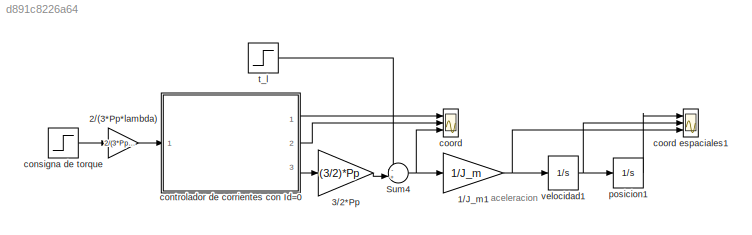
MODEL slx_d891c8226a64
KIND model
BLOCK [Gain] 1//J_m1
  Gain = 1/J_m
  OutDataTypeStr = Inherit: Inherit via internal rule
  ParamDataTypeStr = Inherit: Inherit via internal rule
  SaturateOnIntegerOverflow = off
BLOCK [Gain] 2//(3*Pp*lambda)
  Gain = 2/(3*Pp*lambda)
  OutDataTypeStr = Inherit: Inherit via internal rule
  ParamDataTypeStr = Inherit: Inherit via internal rule
  SaturateOnIntegerOverflow = off
BLOCK [Gain] 3//2*Pp
  Gain = (3/2)*Pp
  OutDataTypeStr = Inherit: Inherit via internal rule
  ParamDataTypeStr = Inherit: Inherit via internal rule
  SaturateOnIntegerOverflow = off
BLOCK [Sum] Sum4
  IconShape = round
  InputSameDT = off
  Inputs = -+|
  OutDataTypeStr = Inherit: Inherit via internal rule
  Ports = [2, 1]
  SaturateOnIntegerOverflow = off
BLOCK [Step] consigna de torque
  After = .005
  SampleTime = 0
  Time = .1
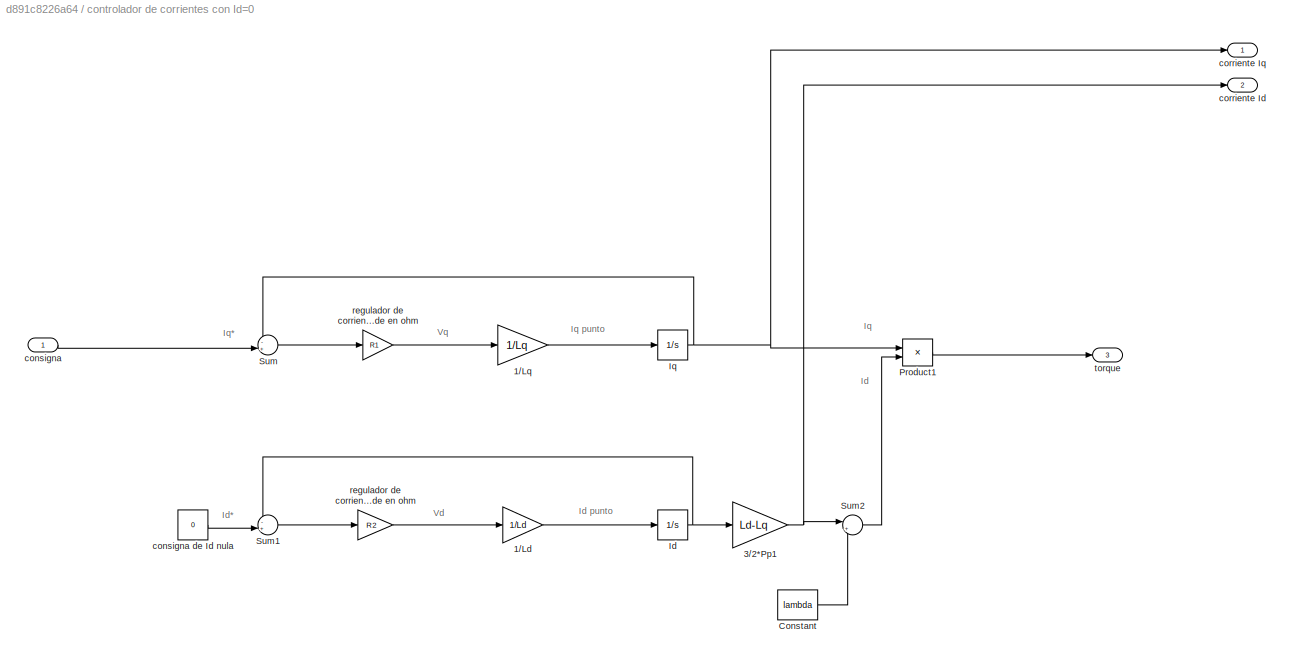
BLOCK [SubSystem] controlador de corrientes con Id=0
  FunctionWithSeparateData = off
  MaskHideContents = off
  MinAlgLoopOccurrences = off
  Opaque = off
  Ports = [1, 3]
  PropExecContextOutsideSubsystem = off
  RTWSystemCode = Auto
  RequestExecContextInheritance = off
BLOCK [Gain] controlador de corrientes con Id=0/1//Ld
  Gain = 1/Ld
  OutDataTypeStr = Inherit: Inherit via internal rule
  ParamDataTypeStr = Inherit: Inherit via internal rule
  SaturateOnIntegerOverflow = off
BLOCK [Gain] controlador de corrientes con Id=0/1//Lq
  Gain = 1/Lq
  OutDataTypeStr = Inherit: Inherit via internal rule
  ParamDataTypeStr = Inherit: Inherit via internal rule
  SaturateOnIntegerOverflow = off
BLOCK [Gain] controlador de corrientes con Id=0/3//2*Pp1
  Gain = Ld-Lq
  OutDataTypeStr = Inherit: Inherit via internal rule
  ParamDataTypeStr = Inherit: Inherit via internal rule
  SaturateOnIntegerOverflow = off
BLOCK [Constant] controlador de corrientes con Id=0/Constant
  Value = lambda
BLOCK [Integrator] controlador de corrientes con Id=0/Id
  Ports = [1, 1]
BLOCK [Integrator] controlador de corrientes con Id=0/Iq
  Ports = [1, 1]
BLOCK [Product] controlador de corrientes con Id=0/Product1
  InputSameDT = off
  OutDataTypeStr = Inherit: Inherit via internal rule
  Ports = [2, 1]
  SaturateOnIntegerOverflow = off
BLOCK [Sum] controlador de corrientes con Id=0/Sum
  IconShape = round
  InputSameDT = off
  Inputs = -+|
  OutDataTypeStr = Inherit: Inherit via internal rule
  Ports = [2, 1]
  SaturateOnIntegerOverflow = off
BLOCK [Sum] controlador de corrientes con Id=0/Sum1
  IconShape = round
  InputSameDT = off
  Inputs = -+|
  OutDataTypeStr = Inherit: Inherit via internal rule
  Ports = [2, 1]
  SaturateOnIntegerOverflow = off
BLOCK [Sum] controlador de corrientes con Id=0/Sum2
  IconShape = round
  InputSameDT = off
  Inputs = |++
  OutDataTypeStr = Inherit: Inherit via internal rule
  Ports = [2, 1]
  SaturateOnIntegerOverflow = off
BLOCK [Inport] controlador de corrientes con Id=0/consigna
  IconDisplay = Port number
BLOCK [Constant] controlador de corrientes con Id=0/consigna de Id nula
  Value = 0
BLOCK [Outport] controlador de corrientes con Id=0/corriente Id
  IconDisplay = Port number
  Port = 2
BLOCK [Outport] controlador de corrientes con Id=0/corriente Iq
  IconDisplay = Port number
BLOCK [Gain] controlador de corrientes con Id=0/regulador de corriente ganacia proporcional se mide en ohm
  Gain = R2
  OutDataTypeStr = Inherit: Inherit via internal rule
  ParamDataTypeStr = Inherit: Inherit via internal rule
  SaturateOnIntegerOverflow = off
BLOCK [Gain] controlador de corrientes con Id=0/regulador de corriente ganacia proporcional1 se mide en ohm
  Gain = R1
  OutDataTypeStr = Inherit: Inherit via internal rule
  ParamDataTypeStr = Inherit: Inherit via internal rule
  SaturateOnIntegerOverflow = off
BLOCK [Outport] controlador de corrientes con Id=0/torque
  IconDisplay = Port number
  Port = 3
BLOCK [Scope] coord 
  DataFormat = StructureWithTime
  Floating = off
  LimitDataPoints = off
  MaxDataPoints = 8000
  NumInputPorts = 3
  Ports = [3]
  SampleTime = 0
  SaveName = ScopeData2
  ShowLegends = off
  TimeRange = 10
  YMax = 6~1~0.4
  YMin = 0~-1~0
  ZoomMode = xonly
BLOCK [Scope] coord espaciales1
  DataFormat = StructureWithTime
  Floating = off
  LimitDataPoints = off
  MaxDataPoints = 8000
  NumInputPorts = 3
  Ports = [3]
  SampleTime = 0
  SaveName = ScopeData3
  ShowLegends = off
  TimeRange = 12
  YMax = 3000~300~100000
  YMin = -1000~0~-50000
  ZoomMode = xonly
BLOCK [Integrator] posicion1
  Ports = [1, 1]
BLOCK [Step] t_l
  After = T_l
  SampleTime = 0
  Time = .3
BLOCK [Integrator] velocidad1
  ContinuousStateAttributes = 'velocidad'
  Ports = [1, 1]
ANNOTATION (root): aceleracion
ANNOTATION controlador de corrientes con Id=0: Id
ANNOTATION controlador de corrientes con Id=0: Id punto
ANNOTATION controlador de corrientes con Id=0: Id*
ANNOTATION controlador de corrientes con Id=0: Iq
ANNOTATION controlador de corrientes con Id=0: Iq punto
ANNOTATION controlador de corrientes con Id=0: Iq*
ANNOTATION controlador de corrientes con Id=0: Vd
ANNOTATION controlador de corrientes con Id=0: Vq
NET 1//J_m1:1 -> coord espaciales1:3, velocidad1:1
LINE 2//(3*Pp*lambda):1 -> controlador de corrientes con Id=0:1
LINE 3//2*Pp:1 -> Sum4:2
NET Sum4:1 -> 1//J_m1:1, coord :3
LINE consigna de torque:1 -> 2//(3*Pp*lambda):1
LINE controlador de corrientes con Id=0/1//Ld:1 -> controlador de corrientes con Id=0/Id:1
LINE controlador de corrientes con Id=0/1//Lq:1 -> controlador de corrientes con Id=0/Iq:1
NET controlador de corrientes con Id=0/3//2*Pp1:1 -> controlador de corrientes con Id=0/Sum2:1, controlador de corrientes con Id=0/corriente Id:1
LINE controlador de corrientes con Id=0/Constant:1 -> controlador de corrientes con Id=0/Sum2:2
NET controlador de corrientes con Id=0/Id:1 -> controlador de corrientes con Id=0/3//2*Pp1:1, controlador de corrientes con Id=0/Sum1:1
NET controlador de corrientes con Id=0/Iq:1 -> controlador de corrientes con Id=0/Product1:1, controlador de corrientes con Id=0/Sum:1, controlador de corrientes con Id=0/corriente Iq:1
LINE controlador de corrientes con Id=0/Product1:1 -> controlador de corrientes con Id=0/torque:1
LINE controlador de corrientes con Id=0/Sum1:1 -> controlador de corrientes con Id=0/regulador de corriente ganacia proporcional se mide en ohm:1
LINE controlador de corrientes con Id=0/Sum2:1 -> controlador de corrientes con Id=0/Product1:2
LINE controlador de corrientes con Id=0/Sum:1 -> controlador de corrientes con Id=0/regulador de corriente ganacia proporcional1 se mide en ohm:1
LINE controlador de corrientes con Id=0/consigna de Id nula:1 -> controlador de corrientes con Id=0/Sum1:2
LINE controlador de corrientes con Id=0/consigna:1 -> controlador de corrientes con Id=0/Sum:2
LINE controlador de corrientes con Id=0/regulador de corriente ganacia proporcional se mide en ohm:1 -> controlador de corrientes con Id=0/1//Ld:1
LINE controlador de corrientes con Id=0/regulador de corriente ganacia proporcional1 se mide en ohm:1 -> controlador de corrientes con Id=0/1//Lq:1
LINE controlador de corrientes con Id=0:1 -> coord :1
LINE controlador de corrientes con Id=0:2 -> coord :2
LINE controlador de corrientes con Id=0:3 -> 3//2*Pp:1
LINE posicion1:1 -> coord espaciales1:1
LINE t_l:1 -> Sum4:1
NET velocidad1:1 -> coord espaciales1:2, posicion1:1
note: NET lines group one-source signal fan-out (src -> all destinations, sorted); 1:1 wires keep LINE
